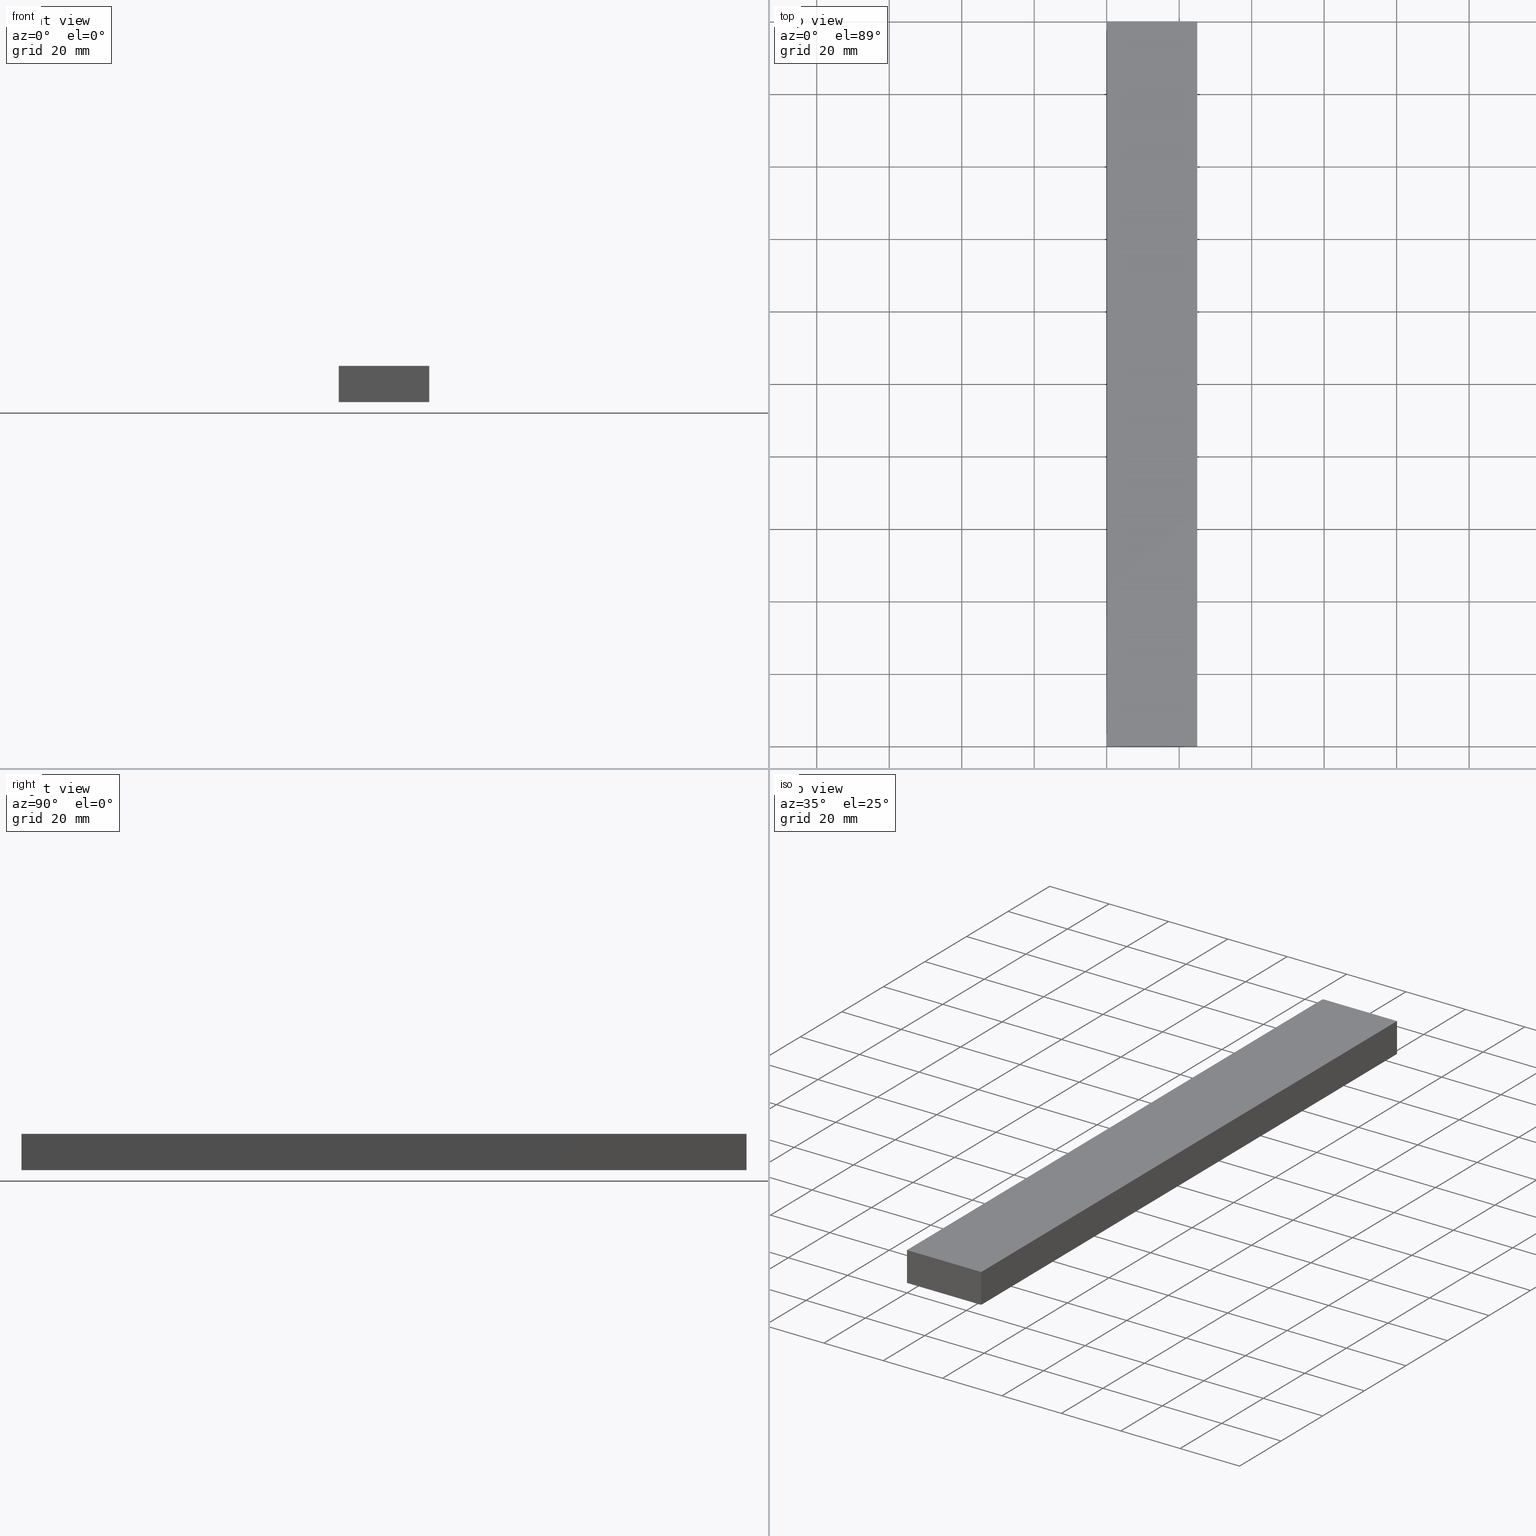
[diagram: canonical four-view strip — front | top / right | iso, engineering-drawing reading convention]
A machine part, canonical four-view strip (front | top / right | iso — engineering-drawing reading convention). The complete STEP part file that produces these views, byte-faithful:
ISO-10303-21;
HEADER;
FILE_DESCRIPTION (( 'STEP AP214' ),
    '1' );
FILE_NAME ('TM_340W_10.STEP',
    '2016-05-09T07:35:39',
    ( '' ),
    ( '' ),
    'SwSTEP 2.0',
    'SolidWorks 2015',
    '' );
FILE_SCHEMA (( 'AUTOMOTIVE_DESIGN' ));
ENDSEC;

DATA;
#1 = VECTOR ( 'NONE', #173, 1000.000000000000000 ) ;
#2 = ORIENTED_EDGE ( 'NONE', *, *, #166, .T. ) ;
#3 = CARTESIAN_POINT ( 'NONE',  ( 0.0000000000000000000, 1000.000000000000000, 10.00000000000000000 ) ) ;
#4 = PRODUCT ( 'TM_340W_10', 'TM_340W_10', '', ( #138 ) ) ;
#5 =( REPRESENTATION_RELATIONSHIP ('NONE','NONE', #113, #196 ) REPRESENTATION_RELATIONSHIP_WITH_TRANSFORMATION ( #58 )SHAPE_REPRESENTATION_RELATIONSHIP( ) );
#6 = PRODUCT_DEFINITION_SHAPE ( 'NONE', 'NONE',  #133 ) ;
#7 = PRODUCT_RELATED_PRODUCT_CATEGORY ( 'part', '', ( #222 ) ) ;
#8 = CARTESIAN_POINT ( 'NONE',  ( 0.0000000000000000000, 200.0000000000000000, 0.0000000000000000000 ) ) ;
#9 = EDGE_CURVE ( 'NONE', #238, #62, #41, .T. ) ;
#10 = CARTESIAN_POINT ( 'NONE',  ( 25.00000000000000000, 0.0000000000000000000, 0.0000000000000000000 ) ) ;
#11 = ORIENTED_EDGE ( 'NONE', *, *, #207, .T. ) ;
#12 = ADVANCED_BREP_SHAPE_REPRESENTATION ( '', ( #160, #110 ), #73 ) ;
#13 = DIRECTION ( 'NONE',  ( 0.0000000000000000000, -1.000000000000000000, 0.0000000000000000000 ) ) ;
#14 = PLANE ( 'NONE',  #219 ) ;
#15 = AXIS2_PLACEMENT_3D ( 'NONE', #182, #157, #212 ) ;
#16 = EDGE_CURVE ( 'NONE', #167, #98, #101, .T. ) ;
#17 = LINE ( 'NONE', #99, #25 ) ;
#18 = VERTEX_POINT ( 'NONE', #52 ) ;
#19 = COLOUR_RGB ( '',0.7921568627450980000, 0.8196078431372548800, 0.9333333333333333500 ) ;
#20 =( NAMED_UNIT ( * ) SI_UNIT ( $, .STERADIAN. ) SOLID_ANGLE_UNIT ( ) );
#21 = SURFACE_SIDE_STYLE ('',( #161 ) ) ;
#22 = DIRECTION ( 'NONE',  ( 0.0000000000000000000, 0.0000000000000000000, 1.000000000000000000 ) ) ;
#23 = CARTESIAN_POINT ( 'NONE',  ( 25.00000000000000000, 1000.000000000000000, 10.00000000000000000 ) ) ;
#24 = EDGE_LOOP ( 'NONE', ( #231, #80, #118, #150 ) ) ;
#25 = VECTOR ( 'NONE', #189, 1000.000000000000000 ) ;
#26 = UNCERTAINTY_MEASURE_WITH_UNIT (LENGTH_MEASURE( 1.000000000000000100E-005 ), #77, 'distance_accuracy_value', 'NONE');
#27 = CARTESIAN_POINT ( 'NONE',  ( 0.0000000000000000000, 0.0000000000000000000, 0.0000000000000000000 ) ) ;
#28 = ORIENTED_EDGE ( 'NONE', *, *, #205, .F. ) ;
#29 = DIRECTION ( 'NONE',  ( 1.000000000000000000, 0.0000000000000000000, 0.0000000000000000000 ) ) ;
#30 = VECTOR ( 'NONE', #130, 1000.000000000000000 ) ;
#31 =( NAMED_UNIT ( * ) PLANE_ANGLE_UNIT ( ) SI_UNIT ( $, .RADIAN. ) );
#32 = ORIENTED_EDGE ( 'NONE', *, *, #9, .F. ) ;
#33 = DIRECTION ( 'NONE',  ( 1.000000000000000000, 0.0000000000000000000, 0.0000000000000000000 ) ) ;
#34 = APPLICATION_PROTOCOL_DEFINITION ( 'draft international standard', 'automotive_design', 1998, #180 ) ;
#35 = ORIENTED_EDGE ( 'NONE', *, *, #199, .T. ) ;
#36 = PRODUCT_DEFINITION_CONTEXT ( 'detailed design', #53, 'design' ) ;
#37 = FILL_AREA_STYLE_COLOUR ( '', #44 ) ;
#38 = PRODUCT_CONTEXT ( 'NONE', #117, 'mechanical' ) ;
#39 = DIRECTION ( 'NONE',  ( 1.000000000000000000, 0.0000000000000000000, 0.0000000000000000000 ) ) ;
#40 =( NAMED_UNIT ( * ) SI_UNIT ( $, .STERADIAN. ) SOLID_ANGLE_UNIT ( ) );
#41 = LINE ( 'NONE', #188, #209 ) ;
#42 = PRODUCT_DEFINITION ( 'UNKNOWN', '', #76, #230 ) ;
#43 = PRESENTATION_LAYER_ASSIGNMENT (  '', '', ( #91 ) ) ;
#44 = COLOUR_RGB ( '',0.7921568627450980000, 0.8196078431372548800, 0.9333333333333333500 ) ;
#45 = ORIENTED_EDGE ( 'NONE', *, *, #112, .F. ) ;
#46 = UNCERTAINTY_MEASURE_WITH_UNIT (LENGTH_MEASURE( 1.000000000000000100E-005 ), #227, 'distance_accuracy_value', 'NONE');
#47 = FACE_OUTER_BOUND ( 'NONE', #69, .T. ) ;
#48 = LINE ( 'NONE', #142, #114 ) ;
#49 = ADVANCED_FACE ( 'NONE', ( #79 ), #217, .F. ) ;
#50 = CONTEXT_DEPENDENT_SHAPE_REPRESENTATION ( #5, #59 ) ;
#51 = LINE ( 'NONE', #171, #232 ) ;
#52 = CARTESIAN_POINT ( 'NONE',  ( 25.00000000000000000, 0.0000000000000000000, 10.00000000000000000 ) ) ;
#53 = APPLICATION_CONTEXT ( 'automotive_design' ) ;
#54 = MECHANICAL_DESIGN_GEOMETRIC_PRESENTATION_REPRESENTATION (  '', ( #132 ), #88 ) ;
#55 = ORIENTED_EDGE ( 'NONE', *, *, #151, .T. ) ;
#56 = DIRECTION ( 'NONE',  ( 1.000000000000000000, 0.0000000000000000000, 0.0000000000000000000 ) ) ;
#57 = DIRECTION ( 'NONE',  ( 0.0000000000000000000, 0.0000000000000000000, 1.000000000000000000 ) ) ;
#58 = ITEM_DEFINED_TRANSFORMATION ( 'NONE', 'NONE', #65,  #110 ) ;
#59 = PRODUCT_DEFINITION_SHAPE ( 'NONE', 'NONE',  #239 ) ;
#60 =( NAMED_UNIT ( * ) PLANE_ANGLE_UNIT ( ) SI_UNIT ( $, .RADIAN. ) );
#61 = DIRECTION ( 'NONE',  ( 1.000000000000000000, 0.0000000000000000000, 0.0000000000000000000 ) ) ;
#62 = VERTEX_POINT ( 'NONE', #146 ) ;
#63 = DIRECTION ( 'NONE',  ( 1.000000000000000000, 0.0000000000000000000, 0.0000000000000000000 ) ) ;
#64 = VECTOR ( 'NONE', #13, 1000.000000000000000 ) ;
#65 = AXIS2_PLACEMENT_3D ( 'NONE', #94, #202, #56 ) ;
#66 = SURFACE_SIDE_STYLE ('',( #102 ) ) ;
#67 = DIRECTION ( 'NONE',  ( 0.0000000000000000000, 0.0000000000000000000, -1.000000000000000000 ) ) ;
#68 = PRESENTATION_LAYER_ASSIGNMENT (  '', '', ( #132 ) ) ;
#69 = EDGE_LOOP ( 'NONE', ( #139, #90, #107, #179 ) ) ;
#70 = ORIENTED_EDGE ( 'NONE', *, *, #225, .F. ) ;
#71 = EDGE_CURVE ( 'NONE', #62, #167, #122, .T. ) ;
#72 = MECHANICAL_DESIGN_GEOMETRIC_PRESENTATION_REPRESENTATION (  '', ( #91 ), #83 ) ;
#73 =( GEOMETRIC_REPRESENTATION_CONTEXT ( 3 ) GLOBAL_UNCERTAINTY_ASSIGNED_CONTEXT ( ( #119 ) ) GLOBAL_UNIT_ASSIGNED_CONTEXT ( ( #100, #60, #152 ) ) REPRESENTATION_CONTEXT ( 'NONE', 'WORKASPACE' ) );
#74 = DIRECTION ( 'NONE',  ( 0.0000000000000000000, 0.0000000000000000000, -1.000000000000000000 ) ) ;
#75 = PLANE ( 'NONE',  #156 ) ;
#76 = PRODUCT_DEFINITION_FORMATION_WITH_SPECIFIED_SOURCE ( 'ANY', '', #4, .NOT_KNOWN. ) ;
#77 =( LENGTH_UNIT ( ) NAMED_UNIT ( * ) SI_UNIT ( .MILLI., .METRE. ) );
#78 = DIRECTION ( 'NONE',  ( -1.000000000000000000, 0.0000000000000000000, 0.0000000000000000000 ) ) ;
#79 = FACE_OUTER_BOUND ( 'NONE', #136, .T. ) ;
#80 = ORIENTED_EDGE ( 'NONE', *, *, #16, .T. ) ;
#81 = CARTESIAN_POINT ( 'NONE',  ( 25.00000000000000000, 200.0000000000000000, 10.00000000000000000 ) ) ;
#82 = CARTESIAN_POINT ( 'NONE',  ( 0.0000000000000000000, 0.0000000000000000000, 0.0000000000000000000 ) ) ;
#83 =( GEOMETRIC_REPRESENTATION_CONTEXT ( 3 ) GLOBAL_UNCERTAINTY_ASSIGNED_CONTEXT ( ( #26 ) ) GLOBAL_UNIT_ASSIGNED_CONTEXT ( ( #77, #216, #154 ) ) REPRESENTATION_CONTEXT ( 'NONE', 'WORKASPACE' ) );
#84 = VECTOR ( 'NONE', #172, 1000.000000000000000 ) ;
#85 = LINE ( 'NONE', #87, #84 ) ;
#86 = PLANE ( 'NONE',  #211 ) ;
#87 = CARTESIAN_POINT ( 'NONE',  ( 25.00000000000000000, 0.0000000000000000000, 10.00000000000000000 ) ) ;
#88 =( GEOMETRIC_REPRESENTATION_CONTEXT ( 3 ) GLOBAL_UNCERTAINTY_ASSIGNED_CONTEXT ( ( #184 ) ) GLOBAL_UNIT_ASSIGNED_CONTEXT ( ( #195, #31, #20 ) ) REPRESENTATION_CONTEXT ( 'NONE', 'WORKASPACE' ) );
#89 = SHAPE_DEFINITION_REPRESENTATION ( #6, #196 ) ;
#90 = ORIENTED_EDGE ( 'NONE', *, *, #199, .F. ) ;
#91 = STYLED_ITEM ( 'NONE', ( #200 ), #12 ) ;
#92 = EDGE_CURVE ( 'NONE', #167, #18, #97, .T. ) ;
#93 = ORIENTED_EDGE ( 'NONE', *, *, #112, .T. ) ;
#94 = CARTESIAN_POINT ( 'NONE',  ( 0.0000000000000000000, 0.0000000000000000000, 0.0000000000000000000 ) ) ;
#95 = VECTOR ( 'NONE', #201, 1000.000000000000000 ) ;
#96 = VECTOR ( 'NONE', #74, 1000.000000000000000 ) ;
#97 = LINE ( 'NONE', #109, #145 ) ;
#98 = VERTEX_POINT ( 'NONE', #187 ) ;
#99 = CARTESIAN_POINT ( 'NONE',  ( 25.00000000000000000, 200.0000000000000000, 0.0000000000000000000 ) ) ;
#100 =( LENGTH_UNIT ( ) NAMED_UNIT ( * ) SI_UNIT ( .MILLI., .METRE. ) );
#101 = LINE ( 'NONE', #192, #96 ) ;
#102 = SURFACE_STYLE_FILL_AREA ( #141 ) ;
#103 = AXIS2_PLACEMENT_3D ( 'NONE', #27, #213, #197 ) ;
#104 = AXIS2_PLACEMENT_3D ( 'NONE', #233, #57, #63 ) ;
#105 = SURFACE_STYLE_USAGE ( .BOTH. , #66 ) ;
#106 =( NAMED_UNIT ( * ) PLANE_ANGLE_UNIT ( ) SI_UNIT ( $, .RADIAN. ) );
#107 = ORIENTED_EDGE ( 'NONE', *, *, #237, .F. ) ;
#108 = APPLICATION_PROTOCOL_DEFINITION ( 'draft international standard', 'automotive_design', 1998, #117 ) ;
#109 = CARTESIAN_POINT ( 'NONE',  ( 25.00000000000000000, 1000.000000000000000, 10.00000000000000000 ) ) ;
#110 = AXIS2_PLACEMENT_3D ( 'NONE', #203, #126, #33 ) ;
#111 = FACE_OUTER_BOUND ( 'NONE', #218, .T. ) ;
#112 = EDGE_CURVE ( 'NONE', #238, #220, #215, .T. ) ;
#113 = SHAPE_REPRESENTATION ( 'TM_340W_10', ( #104, #65 ), #148 ) ;
#114 = VECTOR ( 'NONE', #177, 1000.000000000000000 ) ;
#115 = AXIS2_PLACEMENT_3D ( 'NONE', #193, #143, #61 ) ;
#116 = ADVANCED_FACE ( 'NONE', ( #164 ), #14, .T. ) ;
#117 = APPLICATION_CONTEXT ( 'automotive_design' ) ;
#118 = ORIENTED_EDGE ( 'NONE', *, *, #225, .T. ) ;
#119 = UNCERTAINTY_MEASURE_WITH_UNIT (LENGTH_MEASURE( 1.000000000000000100E-005 ), #100, 'distance_accuracy_value', 'NONE');
#120 = DIRECTION ( 'NONE',  ( -1.000000000000000000, 0.0000000000000000000, 0.0000000000000000000 ) ) ;
#121 = FACE_OUTER_BOUND ( 'NONE', #198, .T. ) ;
#122 = LINE ( 'NONE', #206, #163 ) ;
#123 = ADVANCED_FACE ( 'NONE', ( #111 ), #223, .F. ) ;
#124 = SURFACE_STYLE_USAGE ( .BOTH. , #21 ) ;
#125 = APPLICATION_PROTOCOL_DEFINITION ( 'draft international standard', 'automotive_design', 1998, #53 ) ;
#126 = DIRECTION ( 'NONE',  ( 0.0000000000000000000, 0.0000000000000000000, 1.000000000000000000 ) ) ;
#127 = ORIENTED_EDGE ( 'NONE', *, *, #92, .T. ) ;
#128 = DIRECTION ( 'NONE',  ( 0.0000000000000000000, 0.0000000000000000000, -1.000000000000000000 ) ) ;
#129 = DIRECTION ( 'NONE',  ( -0.0000000000000000000, 1.000000000000000000, 0.0000000000000000000 ) ) ;
#130 = DIRECTION ( 'NONE',  ( 0.0000000000000000000, -1.000000000000000000, 0.0000000000000000000 ) ) ;
#131 = CARTESIAN_POINT ( 'NONE',  ( 0.0000000000000000000, 200.0000000000000000, 0.0000000000000000000 ) ) ;
#132 = STYLED_ITEM ( 'NONE', ( #178 ), #160 ) ;
#133 = PRODUCT_DEFINITION ( 'UNKNOWN', '', #210, #36 ) ;
#134 = DIRECTION ( 'NONE',  ( 0.0000000000000000000, 0.0000000000000000000, 1.000000000000000000 ) ) ;
#135 = APPLICATION_CONTEXT ( 'automotive_design' ) ;
#136 = EDGE_LOOP ( 'NONE', ( #35, #137, #32, #93 ) ) ;
#137 = ORIENTED_EDGE ( 'NONE', *, *, #207, .F. ) ;
#138 = PRODUCT_CONTEXT ( 'NONE', #135, 'mechanical' ) ;
#139 = ORIENTED_EDGE ( 'NONE', *, *, #166, .F. ) ;
#140 = EDGE_LOOP ( 'NONE', ( #55, #28, #144, #127 ) ) ;
#141 = FILL_AREA_STYLE ('',( #162 ) ) ;
#142 = CARTESIAN_POINT ( 'NONE',  ( 0.0000000000000000000, 0.0000000000000000000, 0.0000000000000000000 ) ) ;
#143 = DIRECTION ( 'NONE',  ( 0.0000000000000000000, 0.0000000000000000000, 1.000000000000000000 ) ) ;
#144 = ORIENTED_EDGE ( 'NONE', *, *, #16, .F. ) ;
#145 = VECTOR ( 'NONE', #165, 1000.000000000000000 ) ;
#146 = CARTESIAN_POINT ( 'NONE',  ( 0.0000000000000000000, 200.0000000000000000, 10.00000000000000000 ) ) ;
#147 = PRODUCT_DEFINITION_SHAPE ( 'NONE', 'NONE',  #42 ) ;
#148 =( GEOMETRIC_REPRESENTATION_CONTEXT ( 3 ) GLOBAL_UNCERTAINTY_ASSIGNED_CONTEXT ( ( #46 ) ) GLOBAL_UNIT_ASSIGNED_CONTEXT ( ( #227, #106, #40 ) ) REPRESENTATION_CONTEXT ( 'NONE', 'WORKASPACE' ) );
#149 = CARTESIAN_POINT ( 'NONE',  ( 0.0000000000000000000, 0.0000000000000000000, 10.00000000000000000 ) ) ;
#150 = ORIENTED_EDGE ( 'NONE', *, *, #9, .T. ) ;
#151 = EDGE_CURVE ( 'NONE', #18, #229, #85, .T. ) ;
#152 =( NAMED_UNIT ( * ) SI_UNIT ( $, .STERADIAN. ) SOLID_ANGLE_UNIT ( ) );
#153 = PLANE ( 'NONE',  #103 ) ;
#154 =( NAMED_UNIT ( * ) SI_UNIT ( $, .STERADIAN. ) SOLID_ANGLE_UNIT ( ) );
#155 = FILL_AREA_STYLE ('',( #37 ) ) ;
#156 = AXIS2_PLACEMENT_3D ( 'NONE', #23, #78, #22 ) ;
#157 = DIRECTION ( 'NONE',  ( 0.0000000000000000000, 0.0000000000000000000, 1.000000000000000000 ) ) ;
#158 = LINE ( 'NONE', #194, #64 ) ;
#159 = APPLICATION_PROTOCOL_DEFINITION ( 'draft international standard', 'automotive_design', 1998, #135 ) ;
#160 = MANIFOLD_SOLID_BREP ( '���߰�1', #191 ) ;
#161 = SURFACE_STYLE_FILL_AREA ( #155 ) ;
#162 = FILL_AREA_STYLE_COLOUR ( '', #19 ) ;
#163 = VECTOR ( 'NONE', #29, 1000.000000000000000 ) ;
#164 = FACE_OUTER_BOUND ( 'NONE', #24, .T. ) ;
#165 = DIRECTION ( 'NONE',  ( 0.0000000000000000000, -1.000000000000000000, 0.0000000000000000000 ) ) ;
#166 = EDGE_CURVE ( 'NONE', #186, #18, #51, .T. ) ;
#167 = VERTEX_POINT ( 'NONE', #81 ) ;
#168 = PRODUCT_RELATED_PRODUCT_CATEGORY ( 'part', '', ( #4 ) ) ;
#169 = AXIS2_PLACEMENT_3D ( 'NONE', #170, #224, #67 ) ;
#170 = CARTESIAN_POINT ( 'NONE',  ( 0.0000000000000000000, 1000.000000000000000, 0.0000000000000000000 ) ) ;
#171 = CARTESIAN_POINT ( 'NONE',  ( 0.0000000000000000000, 0.0000000000000000000, 10.00000000000000000 ) ) ;
#172 = DIRECTION ( 'NONE',  ( 0.0000000000000000000, 0.0000000000000000000, -1.000000000000000000 ) ) ;
#173 = DIRECTION ( 'NONE',  ( 0.0000000000000000000, -1.000000000000000000, 0.0000000000000000000 ) ) ;
#174 = SHAPE_REPRESENTATION_RELATIONSHIP ( 'NONE' , 'NONE' ,  #196, #12 ) ;
#175 = LINE ( 'NONE', #228, #1 ) ;
#176 = DIRECTION ( 'NONE',  ( 1.000000000000000000, 0.0000000000000000000, 0.0000000000000000000 ) ) ;
#177 = DIRECTION ( 'NONE',  ( 0.0000000000000000000, 0.0000000000000000000, 1.000000000000000000 ) ) ;
#178 = PRESENTATION_STYLE_ASSIGNMENT (( #124 ) ) ;
#179 = ORIENTED_EDGE ( 'NONE', *, *, #151, .F. ) ;
#180 = APPLICATION_CONTEXT ( 'automotive_design' ) ;
#181 = CARTESIAN_POINT ( 'NONE',  ( 25.00000000000000000, 0.0000000000000000000, 0.0000000000000000000 ) ) ;
#182 = CARTESIAN_POINT ( 'NONE',  ( 0.0000000000000000000, 0.0000000000000000000, 0.0000000000000000000 ) ) ;
#183 = SHAPE_DEFINITION_REPRESENTATION ( #147, #113 ) ;
#184 = UNCERTAINTY_MEASURE_WITH_UNIT (LENGTH_MEASURE( 1.000000000000000100E-005 ), #195, 'distance_accuracy_value', 'NONE');
#185 = ORIENTED_EDGE ( 'NONE', *, *, #71, .F. ) ;
#186 = VERTEX_POINT ( 'NONE', #149 ) ;
#187 = CARTESIAN_POINT ( 'NONE',  ( 25.00000000000000000, 200.0000000000000000, 0.0000000000000000000 ) ) ;
#188 = CARTESIAN_POINT ( 'NONE',  ( 0.0000000000000000000, 200.0000000000000000, 0.0000000000000000000 ) ) ;
#189 = DIRECTION ( 'NONE',  ( -1.000000000000000000, 0.0000000000000000000, 0.0000000000000000000 ) ) ;
#190 = ORIENTED_EDGE ( 'NONE', *, *, #237, .T. ) ;
#191 = CLOSED_SHELL ( 'NONE', ( #214, #226, #123, #49, #116, #234 ) ) ;
#192 = CARTESIAN_POINT ( 'NONE',  ( 25.00000000000000000, 200.0000000000000000, 10.00000000000000000 ) ) ;
#193 = CARTESIAN_POINT ( 'NONE',  ( 25.00000000000000000, 1000.000000000000000, 0.0000000000000000000 ) ) ;
#194 = CARTESIAN_POINT ( 'NONE',  ( 25.00000000000000000, 1000.000000000000000, 0.0000000000000000000 ) ) ;
#195 =( LENGTH_UNIT ( ) NAMED_UNIT ( * ) SI_UNIT ( .MILLI., .METRE. ) );
#196 = SHAPE_REPRESENTATION ( 'rubber foam', ( #110 ), #73 ) ;
#197 = DIRECTION ( 'NONE',  ( 1.000000000000000000, 0.0000000000000000000, 0.0000000000000000000 ) ) ;
#198 = EDGE_LOOP ( 'NONE', ( #2, #208, #185, #11 ) ) ;
#199 = EDGE_CURVE ( 'NONE', #220, #186, #48, .T. ) ;
#200 = PRESENTATION_STYLE_ASSIGNMENT (( #105 ) ) ;
#201 = DIRECTION ( 'NONE',  ( -1.000000000000000000, 0.0000000000000000000, 0.0000000000000000000 ) ) ;
#202 = DIRECTION ( 'NONE',  ( 0.0000000000000000000, 0.0000000000000000000, 1.000000000000000000 ) ) ;
#203 = CARTESIAN_POINT ( 'NONE',  ( 0.0000000000000000000, 0.0000000000000000000, 0.0000000000000000000 ) ) ;
#204 = FACE_OUTER_BOUND ( 'NONE', #140, .T. ) ;
#205 = EDGE_CURVE ( 'NONE', #98, #229, #158, .T. ) ;
#206 = CARTESIAN_POINT ( 'NONE',  ( 0.0000000000000000000, 200.0000000000000000, 10.00000000000000000 ) ) ;
#207 = EDGE_CURVE ( 'NONE', #62, #186, #175, .T. ) ;
#208 = ORIENTED_EDGE ( 'NONE', *, *, #92, .F. ) ;
#209 = VECTOR ( 'NONE', #134, 1000.000000000000000 ) ;
#210 = PRODUCT_DEFINITION_FORMATION_WITH_SPECIFIED_SOURCE ( 'ANY', '', #222, .NOT_KNOWN. ) ;
#211 = AXIS2_PLACEMENT_3D ( 'NONE', #3, #128, #120 ) ;
#212 = DIRECTION ( 'NONE',  ( 1.000000000000000000, 0.0000000000000000000, 0.0000000000000000000 ) ) ;
#213 = DIRECTION ( 'NONE',  ( -0.0000000000000000000, 1.000000000000000000, 0.0000000000000000000 ) ) ;
#214 = ADVANCED_FACE ( 'NONE', ( #121 ), #86, .F. ) ;
#215 = LINE ( 'NONE', #235, #30 ) ;
#216 =( NAMED_UNIT ( * ) PLANE_ANGLE_UNIT ( ) SI_UNIT ( $, .RADIAN. ) );
#217 = PLANE ( 'NONE',  #169 ) ;
#218 = EDGE_LOOP ( 'NONE', ( #190, #45, #70, #236 ) ) ;
#219 = AXIS2_PLACEMENT_3D ( 'NONE', #131, #129, #176 ) ;
#220 = VERTEX_POINT ( 'NONE', #82 ) ;
#221 = LINE ( 'NONE', #181, #95 ) ;
#222 = PRODUCT ( 'rubber foam', 'rubber foam', '', ( #38 ) ) ;
#223 = PLANE ( 'NONE',  #115 ) ;
#224 = DIRECTION ( 'NONE',  ( 1.000000000000000000, 0.0000000000000000000, 0.0000000000000000000 ) ) ;
#225 = EDGE_CURVE ( 'NONE', #98, #238, #17, .T. ) ;
#226 = ADVANCED_FACE ( 'NONE', ( #204 ), #75, .F. ) ;
#227 =( LENGTH_UNIT ( ) NAMED_UNIT ( * ) SI_UNIT ( .MILLI., .METRE. ) );
#228 = CARTESIAN_POINT ( 'NONE',  ( 0.0000000000000000000, 1000.000000000000000, 10.00000000000000000 ) ) ;
#229 = VERTEX_POINT ( 'NONE', #10 ) ;
#230 = PRODUCT_DEFINITION_CONTEXT ( 'detailed design', #180, 'design' ) ;
#231 = ORIENTED_EDGE ( 'NONE', *, *, #71, .T. ) ;
#232 = VECTOR ( 'NONE', #39, 1000.000000000000000 ) ;
#233 = CARTESIAN_POINT ( 'NONE',  ( 0.0000000000000000000, 0.0000000000000000000, 0.0000000000000000000 ) ) ;
#234 = ADVANCED_FACE ( 'NONE', ( #47 ), #153, .F. ) ;
#235 = CARTESIAN_POINT ( 'NONE',  ( 0.0000000000000000000, 1000.000000000000000, 0.0000000000000000000 ) ) ;
#236 = ORIENTED_EDGE ( 'NONE', *, *, #205, .T. ) ;
#237 = EDGE_CURVE ( 'NONE', #229, #220, #221, .T. ) ;
#238 = VERTEX_POINT ( 'NONE', #8 ) ;
#239 = NEXT_ASSEMBLY_USAGE_OCCURRENCE ( 'NAUO1', ' ', ' ', #42, #133, $ ) ;
ENDSEC;
END-ISO-10303-21;
